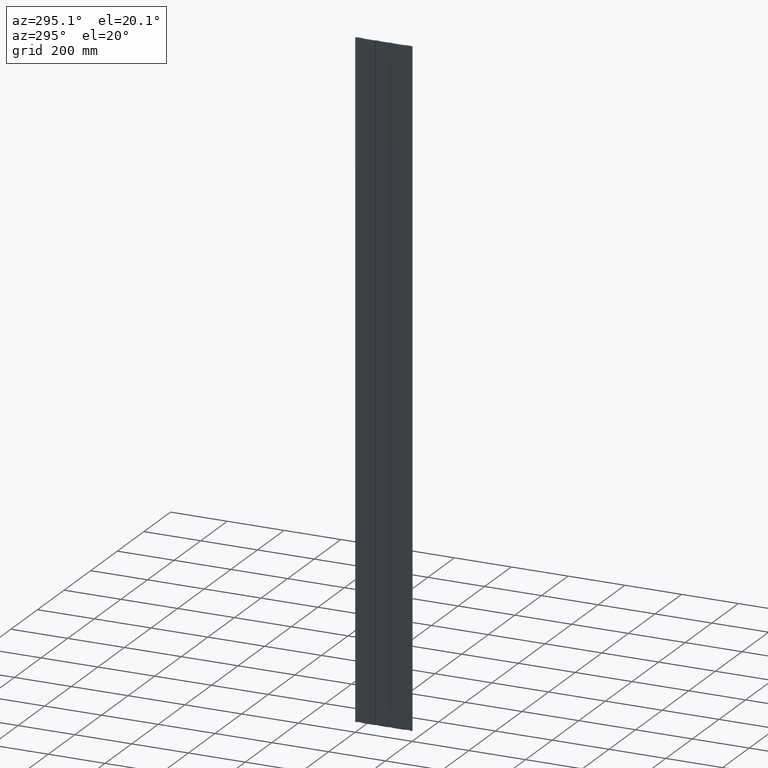
[diagram: clean part render]
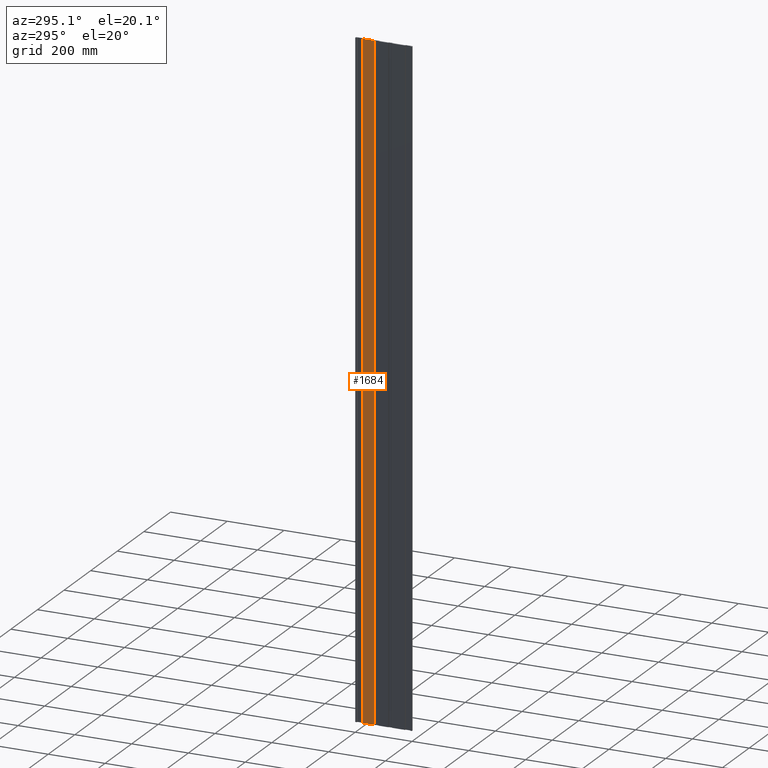
[diagram: same view with one face highlighted and labeled with its STEP entity id]
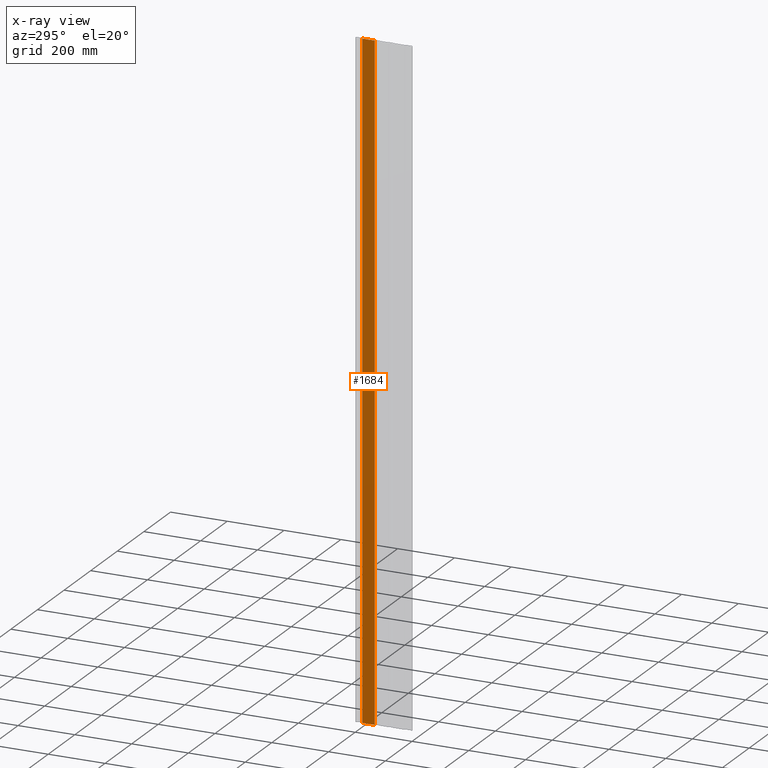
[diagram: x-ray of the same camera — body ghosted, the highlighted face saturated]
A machine part, auxiliary view. The second image highlights one B-rep face of the part: STEP entity #1684.
The next image is the same camera in x-ray: the body ghosted, the highlighted face saturated — about 0% of this face is hidden behind the body in this view.
In plain terms, the highlighted planar face has unit normal (1, 0, -0).
Its self-contained STEP definition (entity closure, byte-faithful):
#1 = EDGE_CURVE ( 'NONE', #724, #310, #1101, .T. ) ;
#15 = ORIENTED_EDGE ( 'NONE', *, *, #1, .F. ) ;
#125 = DIRECTION ( 'NONE',  ( 1.361674548816767900E-019, -1.000000000000000000, -0.0000000000000000000 ) ) ;
#137 = CARTESIAN_POINT ( 'NONE',  ( 5.876265738492028800E-018, 131.1339745962155500, -1162.000000000000000 ) ) ;
#199 = CARTESIAN_POINT ( 'NONE',  ( 5.876265738492028800E-018, 131.1339745962155500, 1162.000000000000000 ) ) ;
#234 = FACE_OUTER_BOUND ( 'NONE', #506, .T. ) ;
#245 = CARTESIAN_POINT ( 'NONE',  ( 5.876265738492028800E-018, 131.1339745962155500, -1162.000000000000000 ) ) ;
#299 = LINE ( 'NONE', #137, #1766 ) ;
#310 = VERTEX_POINT ( 'NONE', #1011 ) ;
#332 = DIRECTION ( 'NONE',  ( 1.361674548816767900E-019, -1.000000000000000000, -0.0000000000000000000 ) ) ;
#506 = EDGE_LOOP ( 'NONE', ( #1602, #1303, #15, #2098 ) ) ;
#609 = VECTOR ( 'NONE', #125, 1000.000000000000000 ) ;
#645 = CARTESIAN_POINT ( 'NONE',  ( -1.734723475976807100E-015, 174.2886751345948300, -1162.000000000000000 ) ) ;
#724 = VERTEX_POINT ( 'NONE', #1262 ) ;
#799 = PLANE ( 'NONE',  #1653 ) ;
#846 = EDGE_CURVE ( 'NONE', #310, #2129, #1197, .T. ) ;
#988 = DIRECTION ( 'NONE',  ( 1.000000000000000000, 1.361674548816767900E-019, -0.0000000000000000000 ) ) ;
#1011 = CARTESIAN_POINT ( 'NONE',  ( 5.876265738492028800E-018, 131.1339745962155500, 1162.000000000000000 ) ) ;
#1101 = LINE ( 'NONE', #1680, #609 ) ;
#1166 = EDGE_CURVE ( 'NONE', #724, #1884, #2040, .T. ) ;
#1197 = LINE ( 'NONE', #199, #1819 ) ;
#1262 = CARTESIAN_POINT ( 'NONE',  ( -1.734723475976807100E-015, 174.2886751345948300, 1162.000000000000000 ) ) ;
#1303 = ORIENTED_EDGE ( 'NONE', *, *, #846, .F. ) ;
#1447 = CARTESIAN_POINT ( 'NONE',  ( -1.734723475976807100E-015, 174.2886751345948300, 1162.000000000000000 ) ) ;
#1479 = VECTOR ( 'NONE', #1660, 1000.000000000000000 ) ;
#1602 = ORIENTED_EDGE ( 'NONE', *, *, #2410, .T. ) ;
#1653 = AXIS2_PLACEMENT_3D ( 'NONE', #2234, #988, #2439 ) ;
#1660 = DIRECTION ( 'NONE',  ( -0.0000000000000000000, -0.0000000000000000000, -1.000000000000000000 ) ) ;
#1680 = CARTESIAN_POINT ( 'NONE',  ( 5.876265738492028800E-018, 131.1339745962155500, 1162.000000000000000 ) ) ;
#1684 = ADVANCED_FACE ( 'NONE', ( #234 ), #799, .F. ) ;
#1711 = DIRECTION ( 'NONE',  ( -0.0000000000000000000, -0.0000000000000000000, -1.000000000000000000 ) ) ;
#1766 = VECTOR ( 'NONE', #332, 1000.000000000000000 ) ;
#1819 = VECTOR ( 'NONE', #1711, 1000.000000000000000 ) ;
#1884 = VERTEX_POINT ( 'NONE', #645 ) ;
#2040 = LINE ( 'NONE', #1447, #1479 ) ;
#2098 = ORIENTED_EDGE ( 'NONE', *, *, #1166, .T. ) ;
#2129 = VERTEX_POINT ( 'NONE', #245 ) ;
#2234 = CARTESIAN_POINT ( 'NONE',  ( 5.876265738492028800E-018, 131.1339745962155500, 1162.000000000000000 ) ) ;
#2410 = EDGE_CURVE ( 'NONE', #1884, #2129, #299, .T. ) ;
#2439 = DIRECTION ( 'NONE',  ( -1.361674548816767900E-019, 1.000000000000000000, 0.0000000000000000000 ) ) ;